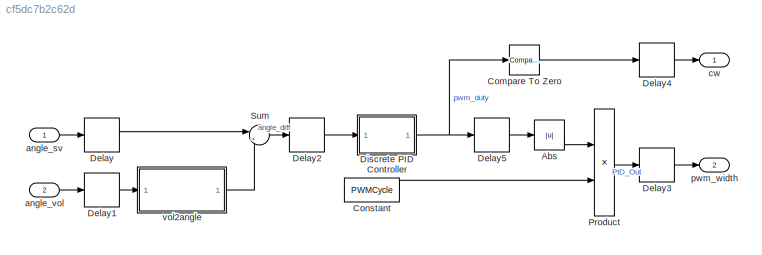
MODEL slx_cf5dc7b2c62d
KIND model
CONFIG PreLoadFcn = param_dcmotor
BLOCK [Abs] Abs
  SaturateOnIntegerOverflow = off
BLOCK [Reference] Compare To Zero  REF=simulink/Logic and Bit
Operations/Compare
To Zero
  OutDataTypeStr = boolean
  Ports = [1, 1]
  SourceBlock = simulink/Logic and Bit\nOperations/Compare\nTo Zero
  SourceType = Compare To Zero
  ZeroCross = off
  relop = >=
BLOCK [Constant] Constant
  OutDataTypeStr = fixdt(0,14,0)
  OutMax = PWMCycle
  OutMin = PWMCycle
  Value = PWMCycle
BLOCK [Delay] Delay
  DelayLength = 1
  InputPortMap = u0
  Ports = [1, 1]
BLOCK [Delay] Delay1
  DelayLength = 1
  InputPortMap = u0
  Ports = [1, 1]
BLOCK [Delay] Delay2
  DelayLength = 1
  InputPortMap = u0
  Ports = [1, 1]
BLOCK [Delay] Delay3
  DelayLength = 1
  InputPortMap = u0
  Ports = [1, 1]
BLOCK [Delay] Delay4
  DelayLength = 1
  InputPortMap = u0
  Ports = [1, 1]
BLOCK [Delay] Delay5
  DelayLength = 1
  InputPortMap = u0
  Ports = [1, 1]
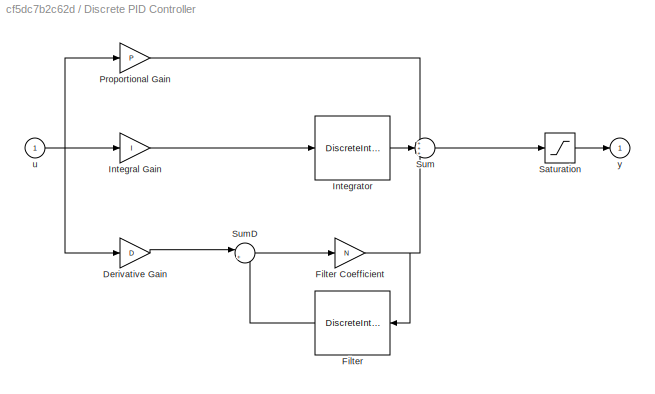
BLOCK [SubSystem] Discrete PID Controller
  DeleteFcn = pidpack.PIDConfig.closeTuner(gcbh)
  DialogController = pidpack.PIDConfig.pidDDGCreate
  ModelCloseFcn = pidpack.PIDConfig.closeTuner(gcbh)
  NameChangeFcn = pidpack.PIDConfig.updateTunerName(gcbh)
  Ports = [1, 1]
  RequestExecContextInheritance = off
BLOCK [Gain] Discrete PID Controller/Derivative Gain
  DisableCoverage = on
  Gain = D
  OutDataTypeStr = DOutDataTypeStr
  OutMax = DOutMax
  OutMin = DOutMin
  ParamDataTypeStr = DParamDataTypeStr
  ParamMax = DParamMax
  ParamMin = DParamMin
  SaturateOnIntegerOverflow = off
BLOCK [DiscreteIntegrator] Discrete PID Controller/Filter
  DisableCoverage = on
  InitialCondition = InitialConditionForFilter
  InitialConditionSetting = State (most efficient)
  OutDataTypeStr = FilterOutDataTypeStr
  OutMax = FilterOutMax
  OutMin = FilterOutMin
  Ports = [1, 1]
  SampleTime = -1
BLOCK [Gain] Discrete PID Controller/Filter Coefficient
  Gain = N
  OutDataTypeStr = NOutDataTypeStr
  OutMax = NOutMax
  OutMin = NOutMin
  ParamDataTypeStr = NParamDataTypeStr
  ParamMax = NParamMax
  ParamMin = NParamMin
  SaturateOnIntegerOverflow = off
BLOCK [Gain] Discrete PID Controller/Integral Gain
  DisableCoverage = on
  Gain = I
  OutDataTypeStr = IOutDataTypeStr
  OutMax = IOutMax
  OutMin = IOutMin
  ParamDataTypeStr = IParamDataTypeStr
  ParamMax = IParamMax
  ParamMin = IParamMin
  SaturateOnIntegerOverflow = off
BLOCK [DiscreteIntegrator] Discrete PID Controller/Integrator
  InitialCondition = InitialConditionForIntegrator
  InitialConditionSetting = State (most efficient)
  OutDataTypeStr = IntegratorOutDataTypeStr
  OutMax = IntegratorOutMax
  OutMin = IntegratorOutMin
  Ports = [1, 1]
  SampleTime = -1
BLOCK [Gain] Discrete PID Controller/Proportional Gain
  Gain = P
  OutDataTypeStr = POutDataTypeStr
  OutMax = POutMax
  OutMin = POutMin
  ParamDataTypeStr = PParamDataTypeStr
  ParamMax = PParamMax
  ParamMin = PParamMin
  SaturateOnIntegerOverflow = off
BLOCK [Saturate] Discrete PID Controller/Saturation
  InputPortMap = u0
  LinearizeAsGain = off
  LowerLimit = LowerSaturationLimit
  OutDataTypeStr = SaturationOutDataTypeStr
  OutMax = SaturationOutMax
  OutMin = SaturationOutMin
  Ports = [1, 1]
  UpperLimit = UpperSaturationLimit
BLOCK [Sum] Discrete PID Controller/Sum
  AccumDataTypeStr = SumAccumDataTypeStr
  IconShape = round
  InputSameDT = off
  Inputs = +++
  OutDataTypeStr = SumOutDataTypeStr
  OutMax = SumOutMax
  OutMin = SumOutMin
  Ports = [3, 1]
  SaturateOnIntegerOverflow = off
BLOCK [Sum] Discrete PID Controller/SumD
  AccumDataTypeStr = SumDAccumDataTypeStr
  DisableCoverage = on
  IconShape = round
  InputSameDT = off
  Inputs = |+-
  OutDataTypeStr = SumDOutDataTypeStr
  OutMax = SumDOutMax
  OutMin = SumDOutMin
  Ports = [2, 1]
  SaturateOnIntegerOverflow = off
BLOCK [Inport] Discrete PID Controller/u
  IconDisplay = Port number
  SampleTime = SampleTime
BLOCK [Outport] Discrete PID Controller/y
  IconDisplay = Port number
  InitialOutput = 0
BLOCK [Product] Product
  InputSameDT = off
  Ports = [2, 1]
  SaturateOnIntegerOverflow = off
BLOCK [Sum] Sum
  IconShape = round
  InputSameDT = off
  Inputs = |+-
  OutDataTypeStr = Inherit: Inherit via internal rule
  Ports = [2, 1]
  SaturateOnIntegerOverflow = off
BLOCK [Inport] angle_sv
  IconDisplay = Port number
  OutDataTypeStr = int16
  OutMax = 32767
  OutMin = -32768
  PortDimensions = 1
  SampleTime = [0.0001,0]
  SamplingMode = Sample based
  SignalType = real
BLOCK [Inport] angle_vol
  IconDisplay = Port number
  OutDataTypeStr = fixdt('ufix16_En10')
  OutMax = 63.99
  OutMin = 0
  Port = 2
  PortDimensions = 1
  SampleTime = [0.0001,0]
  SamplingMode = Sample based
  SignalType = real
BLOCK [Outport] cw
  IconDisplay = Port number
  OutDataTypeStr = boolean
  PortDimensions = 1
  SampleTime = [0.0001,0]
  SamplingMode = Sample based
  SignalType = real
BLOCK [Outport] pwm_width
  IconDisplay = Port number
  OutDataTypeStr = fixdt('sfix29_En14')
  Port = 2
  PortDimensions = 1
  SampleTime = [0.0001,0]
  SamplingMode = Sample based
  SignalType = real
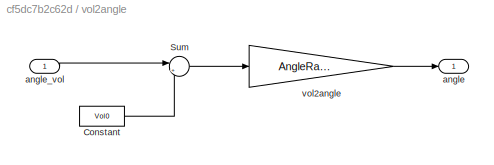
BLOCK [SubSystem] vol2angle
  Ports = [1, 1]
  RequestExecContextInheritance = off
BLOCK [Constant] vol2angle/Constant
  OutDataTypeStr = fixdt(0,3,1)
  Value = Vol0
BLOCK [Sum] vol2angle/Sum
  IconShape = round
  InputSameDT = off
  Inputs = |+-
  OutDataTypeStr = Inherit: Inherit via internal rule
  Ports = [2, 1]
  SaturateOnIntegerOverflow = off
BLOCK [Outport] vol2angle/angle
  IconDisplay = Port number
BLOCK [Inport] vol2angle/angle_vol
  IconDisplay = Port number
BLOCK [Gain] vol2angle/vol2angle
  Gain = AngleRange/VolRange
  OutDataTypeStr = fixdt(1,20,3)
  OutMax = (63.99-Vol0)*AngleRange/VolRange
  OutMin = Vol0*AngleRange/VolRange
  ParamDataTypeStr = Inherit: Inherit via internal rule
  SaturateOnIntegerOverflow = off
LINE Abs:1 -> Product:1
LINE Compare To Zero:1 -> Delay4:1
LINE Constant:1 -> Product:2
LINE Delay1:1 -> vol2angle:1
LINE Delay2:1 -> Discrete PID Controller:1
LINE Delay3:1 -> pwm_width:1
LINE Delay4:1 -> cw:1
LINE Delay5:1 -> Abs:1
LINE Delay:1 -> Sum:1
NET Discrete PID Controller:1 -> Compare To Zero:1, Delay5:1
LINE Product:1 -> Delay3:1
LINE Sum:1 -> Delay2:1
LINE angle_sv:1 -> Delay:1
LINE angle_vol:1 -> Delay1:1
LINE vol2angle/Constant:1 -> vol2angle/Sum:2
LINE vol2angle/Sum:1 -> vol2angle/vol2angle:1
LINE vol2angle/angle_vol:1 -> vol2angle/Sum:1
LINE vol2angle/vol2angle:1 -> vol2angle/angle:1
LINE vol2angle:1 -> Sum:2
note: NET lines group one-source signal fan-out (src -> all destinations, sorted); 1:1 wires keep LINE
